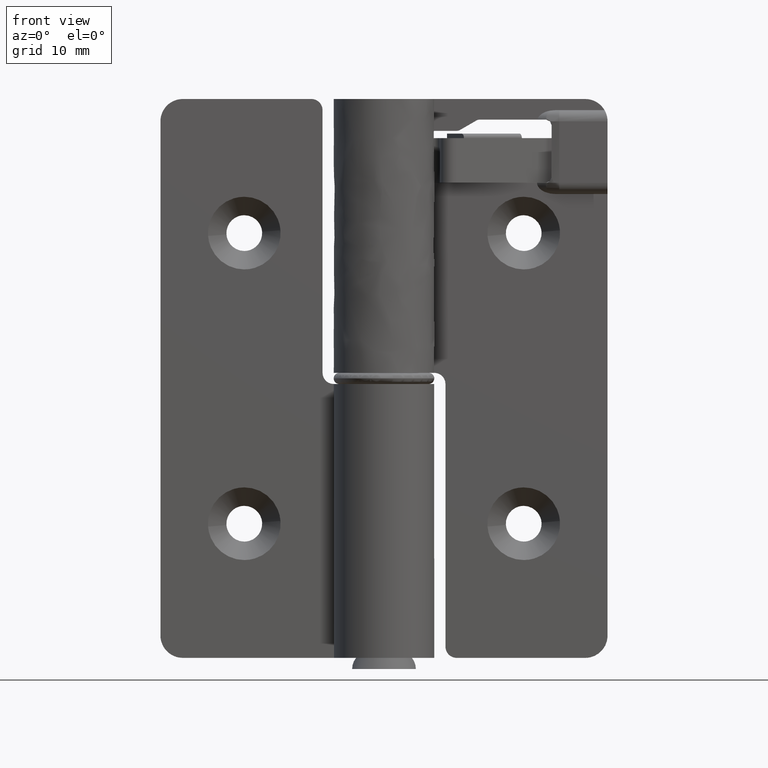
[diagram: clean part render]
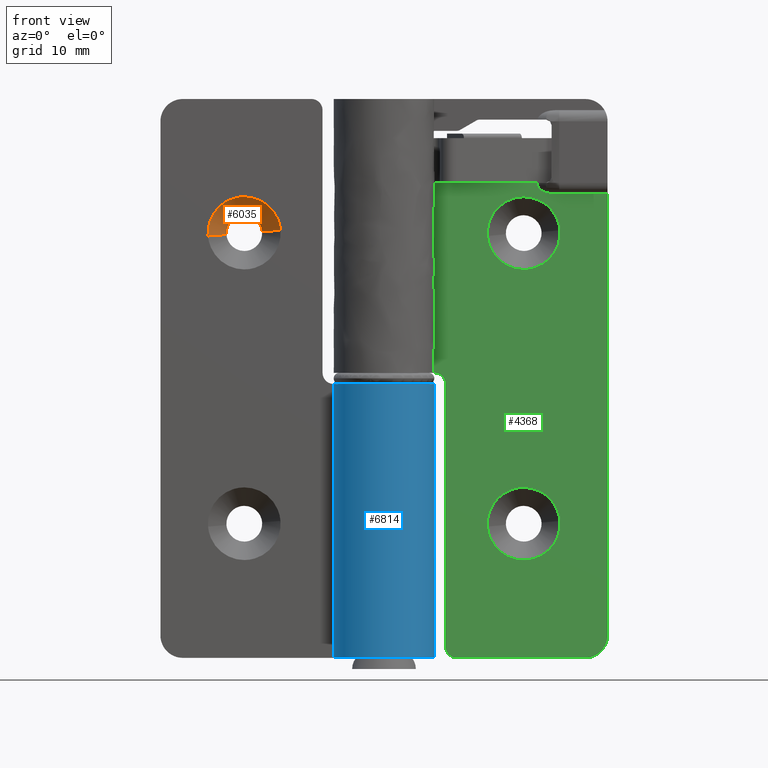
[diagram: same view with three faces highlighted in distinct colors, each labeled with its STEP entity id]
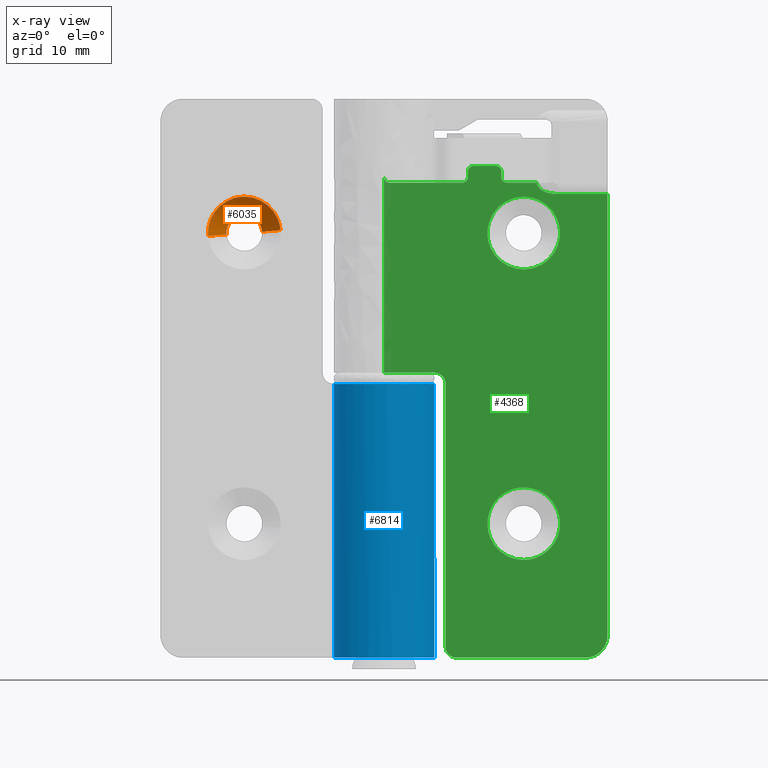
[diagram: x-ray of the same camera — body ghosted, the three highlighted faces saturated]
A machine part, front view with three faces highlighted in distinct colors.
The next image is the same camera in x-ray (body ghosted, the three faces saturated) — at least one of them is partly hidden behind the body in this view.
Their STEP definitions:

[orange] entity #6035 — the highlighted face is a freeform B-spline surface patch.
#5922=CARTESIAN_POINT('',(-10.946055106061390,4.191249999949160,38.122298115465078));
#5923=CARTESIAN_POINT('',(-11.068353221526461,4.191249999949159,39.676243009412651));
#5924=CARTESIAN_POINT('',(-12.622298115474040,4.191249999949160,39.553944893947573));
#5925=CARTESIAN_POINT('',(-14.176243009421610,4.191249999949159,39.431646778482502));
#5926=CARTESIAN_POINT('',(-14.053944893956540,4.191249999949160,37.877701884534922));
#5927=CARTESIAN_POINT('',(-9.217867754368330,2.457718749949155,38.258309409756038));
#5928=CARTESIAN_POINT('',(-9.476177164124367,2.457718749949155,41.540441655396670));
#5929=CARTESIAN_POINT('',(-12.758309409764999,2.457718749949155,41.282132245640632));
#5930=CARTESIAN_POINT('',(-16.040441655405630,2.457718749949155,41.023822835884594));
#5931=CARTESIAN_POINT('',(-15.782132245649590,2.457718749949155,37.741690590243962));
#5939=(BOUNDED_SURFACE()B_SPLINE_SURFACE(2,1,((#5922,#5927),(#5923,#5928),(#5924,#5929),(#5925,#5930),(#5926,#5931)),.UNSPECIFIED.,.F.,.F.,.U.)B_SPLINE_SURFACE_WITH_KNOTS((3,2,3),(2,2),(0.0,5.454830179571735,10.909660359143469),(0.0,2.451583404547591),.UNSPECIFIED.)GEOMETRIC_REPRESENTATION_ITEM()RATIONAL_B_SPLINE_SURFACE(((1.0,1.0),(0.707106781186548,0.707106781186548),(1.0,1.0),(0.707106781186548,0.707106781186548),(1.0,1.0)))REPRESENTATION_ITEM('')SURFACE());
#5940=CARTESIAN_POINT('',(-12.500000000008960,4.149999999949160,39.599999999991027));
#5941=VERTEX_POINT('',#5940);
#5942=CARTESIAN_POINT('',(-10.904932266030951,4.149999999914546,38.125534553427869));
#5943=VERTEX_POINT('',#5942);
#5944=CARTESIAN_POINT('',(-12.500000000008960,4.149999999949160,39.599999999991027));
#5945=CARTESIAN_POINT('',(-11.020975213589910,4.149999999931854,39.599999999992392));
#5946=CARTESIAN_POINT('',(-10.904932266030956,4.149999999914546,38.125534553427876));
#5954=(BOUNDED_CURVE()B_SPLINE_CURVE(2,(#5944,#5945,#5946),.UNSPECIFIED.,.F.,.U.)B_SPLINE_CURVE_WITH_KNOTS((3,3),(0.0,0.236331300604684),.UNSPECIFIED.)CURVE()GEOMETRIC_REPRESENTATION_ITEM()RATIONAL_B_SPLINE_CURVE((1.0,0.723120658638098,0.969723356113209))REPRESENTATION_ITEM(''));
#5955=EDGE_CURVE('',#5941,#5943,#5954,.T.);
#5956=ORIENTED_EDGE('',*,*,#5955,.T.);
#5957=CARTESIAN_POINT('',(-9.260018665377769,2.499999999930231,38.254992061261149));
#5958=VERTEX_POINT('',#5957);
#5959=CARTESIAN_POINT('',(-10.904932266030951,4.149999999914546,38.125534553427869));
#5960=CARTESIAN_POINT('',(-9.260018665377769,2.499999999930231,38.254992061261149));
#5961=QUASI_UNIFORM_CURVE('',1,(#5959,#5960),.UNSPECIFIED.,.F.,.U.);
#5962=EDGE_CURVE('',#5943,#5958,#5961,.T.);
#5963=ORIENTED_EDGE('',*,*,#5962,.T.);
#5964=CARTESIAN_POINT('',(-12.500000000008960,2.499999999949155,41.249999999991040));
#5965=VERTEX_POINT('',#5964);
#5966=CARTESIAN_POINT('',(-12.500000000008960,2.499999999949155,41.249999999991040));
#5967=CARTESIAN_POINT('',(-9.495730902253389,2.499999999939693,41.249999999991793));
#5968=CARTESIAN_POINT('',(-9.260018665377769,2.499999999930231,38.254992061261156));
#5976=(BOUNDED_CURVE()B_SPLINE_CURVE(2,(#5966,#5967,#5968),.UNSPECIFIED.,.F.,.U.)B_SPLINE_CURVE_WITH_KNOTS((3,3),(0.0,0.236331300625102),.UNSPECIFIED.)CURVE()GEOMETRIC_REPRESENTATION_ITEM()RATIONAL_B_SPLINE_CURVE((1.0,0.723120658614177,0.969723356155819))REPRESENTATION_ITEM(''));
#5977=EDGE_CURVE('',#5965,#5958,#5976,.T.);
#5978=ORIENTED_EDGE('',*,*,#5977,.F.);
#5979=CARTESIAN_POINT('',(-15.739981334640150,2.499999999930231,37.745007938738851));
#5980=VERTEX_POINT('',#5979);
#5981=CARTESIAN_POINT('',(-15.739981334640154,2.499999999930231,37.745007938738851));
#5982=CARTESIAN_POINT('',(-15.750000000018519,2.499999999930575,37.872307152151201));
#5983=CARTESIAN_POINT('',(-15.750000000018151,2.499999999930946,37.999999999998579));
#5984=CARTESIAN_POINT('',(-15.750000000008720,2.499999999940409,41.249999999990358));
#5985=CARTESIAN_POINT('',(-12.500000000008960,2.499999999949155,41.249999999991040));
#5993=(BOUNDED_CURVE()B_SPLINE_CURVE(2,(#5981,#5982,#5983,#5984,#5985),.UNSPECIFIED.,.F.,.U.)B_SPLINE_CURVE_WITH_KNOTS((3,2,3),(0.736331300625102,0.750000000000000,1.0),.UNSPECIFIED.)CURVE()GEOMETRIC_REPRESENTATION_ITEM()RATIONAL_B_SPLINE_CURVE((0.969723356155819,0.983986122572371,1.0,0.707106781186548,1.0))REPRESENTATION_ITEM(''));
#5994=EDGE_CURVE('',#5980,#5965,#5993,.T.);
#5995=ORIENTED_EDGE('',*,*,#5994,.F.);
#5996=CARTESIAN_POINT('',(-14.095067733986969,4.149999999914545,37.874465446572138));
#5997=VERTEX_POINT('',#5996);
#5998=CARTESIAN_POINT('',(-14.095067733986969,4.149999999914545,37.874465446572138));
#5999=CARTESIAN_POINT('',(-15.739981334640150,2.499999999930231,37.745007938738851));
#6000=QUASI_UNIFORM_CURVE('',1,(#5998,#5999),.UNSPECIFIED.,.F.,.U.);
#6001=EDGE_CURVE('',#5997,#5980,#6000,.T.);
#6002=ORIENTED_EDGE('',*,*,#6001,.F.);
#6003=CARTESIAN_POINT('',(-14.097015677470059,4.149999999949161,37.902322336664092));
#6004=VERTEX_POINT('',#6003);
#6005=CARTESIAN_POINT('',(-14.095067733986973,4.149999999914545,37.874465446572145));
#6006=CARTESIAN_POINT('',(-14.096163257427746,4.149999999931853,37.888385391895291));
#6007=CARTESIAN_POINT('',(-14.097015677470059,4.149999999949161,37.902322336664085));
#6015=(BOUNDED_CURVE()B_SPLINE_CURVE(2,(#6005,#6006,#6007),.UNSPECIFIED.,.F.,.U.)B_SPLINE_CURVE_WITH_KNOTS((3,3),(0.736331300604685,0.739332962233249),.UNSPECIFIED.)CURVE()GEOMETRIC_REPRESENTATION_ITEM()RATIONAL_B_SPLINE_CURVE((0.969723356113210,0.972855475526160,0.976072041654515))REPRESENTATION_ITEM(''));
#6016=EDGE_CURVE('',#5997,#6004,#6015,.T.);
#6017=ORIENTED_EDGE('',*,*,#6016,.T.);
#6018=CARTESIAN_POINT('',(-14.097015677470063,4.149999999949160,37.902322336664085));
#6019=CARTESIAN_POINT('',(-14.099999999999996,4.149999999949160,37.951115578682071));
#6020=CARTESIAN_POINT('',(-14.100000000000000,4.149999999949160,38.0));
#6021=CARTESIAN_POINT('',(-14.099999999999996,4.149999999949160,39.599999999991041));
#6022=CARTESIAN_POINT('',(-12.500000000008960,4.149999999949160,39.599999999991027));
#6030=(BOUNDED_CURVE()B_SPLINE_CURVE(2,(#6018,#6019,#6020,#6021,#6022),.UNSPECIFIED.,.F.,.U.)B_SPLINE_CURVE_WITH_KNOTS((3,2,3),(0.739332962233251,0.750000000000000,1.0),.UNSPECIFIED.)CURVE()GEOMETRIC_REPRESENTATION_ITEM()RATIONAL_B_SPLINE_CURVE((0.976072041654518,0.987502787893168,1.0,0.707106781186548,1.0))REPRESENTATION_ITEM(''));
#6031=EDGE_CURVE('',#6004,#5941,#6030,.T.);
#6032=ORIENTED_EDGE('',*,*,#6031,.T.);
#6033=EDGE_LOOP('',(#5956,#5963,#5978,#5995,#6002,#6017,#6032));
#6034=FACE_OUTER_BOUND('',#6033,.T.);
#6035=ADVANCED_FACE('',(#6034),#5939,.F.);

[blue] entity #6814 — the highlighted face is a freeform B-spline surface patch.
#6527=CARTESIAN_POINT('',(-2.361106E-011,4.499999999999915,24.500000000000000));
#6528=VERTEX_POINT('',#6527);
#6577=CARTESIAN_POINT('',(-4.031128874164946,1.999999999986880,24.500000000000000));
#6578=VERTEX_POINT('',#6577);
#6584=CARTESIAN_POINT('',(-4.031128874164946,1.999999999986880,24.500000000000000));
#6585=CARTESIAN_POINT('',(-4.138910698636552,1.782797901678130,24.500000000000039));
#6586=CARTESIAN_POINT('',(-4.319236697161159,1.330899886236733,24.499999999999869));
#6587=CARTESIAN_POINT('',(-4.470564290885482,0.648052508530876,24.500000000000291));
#6588=CARTESIAN_POINT('',(-4.512968782724442,0.011345466425118,24.499999999999499));
#6589=CARTESIAN_POINT('',(-4.471666774588810,-0.625003964052230,24.500000000000419));
#6590=CARTESIAN_POINT('',(-4.353332636852210,-1.190532115848609,24.500000000000050));
#6591=CARTESIAN_POINT('',(-4.147242810575023,-1.777563891560950,24.499999999999471));
#6592=CARTESIAN_POINT('',(-3.841242594775816,-2.389234467048076,24.500000000000782));
#6593=CARTESIAN_POINT('',(-3.322259551852740,-3.085314231481744,24.499999999999169));
#6594=CARTESIAN_POINT('',(-2.644624615598066,-3.677127305521129,24.500000000000380));
#6595=CARTESIAN_POINT('',(-1.998106877334217,-4.047997706311331,24.499999999999648));
#6596=CARTESIAN_POINT('',(-1.351045866301826,-4.309828777869096,24.500000000000291));
#6597=CARTESIAN_POINT('',(-0.552076751769771,-4.503752292403455,24.499999999998959));
#6598=CARTESIAN_POINT('',(0.425497224245524,-4.519134363299366,24.500000000000380));
#6599=CARTESIAN_POINT('',(1.319059296673167,-4.327074313559690,24.500000000000060));
#6600=CARTESIAN_POINT('',(2.064581517618691,-4.021992197182581,24.499999999999620));
#6601=CARTESIAN_POINT('',(2.775902178634438,-3.580916584550623,24.500000000000291));
#6602=CARTESIAN_POINT('',(3.418682263895889,-2.973413544661712,24.500000000000039));
#6603=CARTESIAN_POINT('',(3.855487689549861,-2.350389176699889,24.499999999999929));
#6604=CARTESIAN_POINT('',(4.164808762485109,-1.741601058334774,24.500000000000021));
#6605=CARTESIAN_POINT('',(4.398990779026056,-1.066120172799217,24.500000000000000));
#6606=CARTESIAN_POINT('',(4.523778500397806,-0.222262327367381,24.499999999999989));
#6607=CARTESIAN_POINT('',(4.483217019444445,0.583634507895880,24.500000000000011));
#6608=CARTESIAN_POINT('',(4.303377782666636,1.399665645807724,24.500000000000011));
#6609=CARTESIAN_POINT('',(3.959996375538783,2.214723043685090,24.500000000000011));
#6610=CARTESIAN_POINT('',(3.436418109586478,2.946369685308515,24.499999999999950));
#6611=CARTESIAN_POINT('',(2.777171842758245,3.576489097140029,24.500000000000281));
#6612=CARTESIAN_POINT('',(2.032560873465970,4.054673980552566,24.499999999999229));
#6613=CARTESIAN_POINT('',(1.060814606627533,4.413351782570992,24.500000000001592));
#6614=CARTESIAN_POINT('',(0.378883338405472,4.500098844575772,24.499999999998309));
#6615=CARTESIAN_POINT('',(-2.361106E-011,4.499999999999915,24.500000000000000));
#6616=B_SPLINE_CURVE_WITH_KNOTS('',3,(#6584,#6585,#6586,#6587,#6588,#6589,#6590,#6591,#6592,#6593,#6594,#6595,#6596,#6597,#6598,#6599,#6600,#6601,#6602,#6603,#6604,#6605,#6606,#6607,#6608,#6609,#6610,#6611,#6612,#6613,#6614,#6615),.UNSPECIFIED.,.F.,.U.,(4,1,1,1,1,1,1,1,1,1,1,1,1,1,1,1,1,1,1,1,1,1,1,1,1,1,1,1,1,4),(0.000000185316757,0.727421659344014,1.454895616428633,2.091413374669667,2.636997354512545,3.364450628588713,3.819108403073621,4.501089062986498,5.410399312130664,6.410630924166533,7.183532721016015,7.638193236881703,8.502050666034270,9.638689983581743,10.548020362724660,11.229986624437039,12.048360078525031,13.048584592408361,13.866973656365840,14.321633895197159,15.094557706961400,16.003869000038272,16.867709871503319,17.504201886918111,18.504441202661340,19.504693785518551,20.186686407979170,21.232405662262671,22.141705328260340,23.278342379566411),.UNSPECIFIED.);
#6617=EDGE_CURVE('',#6578,#6528,#6616,.T.);
#6635=CARTESIAN_POINT('',(-2.361106E-011,4.499999999999945,0.0));
#6636=VERTEX_POINT('',#6635);
#6642=CARTESIAN_POINT('',(-4.031128874165005,1.999999999986910,0.0));
#6643=VERTEX_POINT('',#6642);
#6644=CARTESIAN_POINT('',(-2.361106E-011,4.499999999999945,0.0));
#6645=CARTESIAN_POINT('',(0.378889206372981,4.500100369644279,0.0));
#6646=CARTESIAN_POINT('',(0.969879381552808,4.424896547282671,0.0));
#6647=CARTESIAN_POINT('',(1.762202467706558,4.159385631030336,0.0));
#6648=CARTESIAN_POINT('',(2.343663404375273,3.860459864176293,0.0));
#6649=CARTESIAN_POINT('',(2.899370034641605,3.462589628597901,0.0));
#6650=CARTESIAN_POINT('',(3.446318920250843,2.934557494791295,0.0));
#6651=CARTESIAN_POINT('',(3.948281859962594,2.225527748551656,0.0));
#6652=CARTESIAN_POINT('',(4.251063925955321,1.526685185996351,0.0));
#6653=CARTESIAN_POINT('',(4.443899500435284,0.808767718039549,0.0));
#6654=CARTESIAN_POINT('',(4.519644396871664,0.158188491351620,0.0));
#6655=CARTESIAN_POINT('',(4.474688438618705,-0.645809195255190,0.0));
#6656=CARTESIAN_POINT('',(4.323473144717106,-1.314040611124905,0.0));
#6657=CARTESIAN_POINT('',(4.064930203417964,-1.962857741290479,0.0));
#6658=CARTESIAN_POINT('',(3.735237589425131,-2.544684330163849,0.0));
#6659=CARTESIAN_POINT('',(3.315846251365067,-3.066275036612475,0.0));
#6660=CARTESIAN_POINT('',(2.836846710763846,-3.509876006020748,0.0));
#6661=CARTESIAN_POINT('',(2.241549836885197,-3.931124364561467,0.0));
#6662=CARTESIAN_POINT('',(1.563605611857329,-4.245238028640666,0.0));
#6663=CARTESIAN_POINT('',(0.814450667526625,-4.442132145589286,0.0));
#6664=CARTESIAN_POINT('',(0.209976652978507,-4.509247545985285,0.0));
#6665=CARTESIAN_POINT('',(-0.427310586807042,-4.492778463940939,0.0));
#6666=CARTESIAN_POINT('',(-1.132857881438533,-4.381010577765641,0.0));
#6667=CARTESIAN_POINT('',(-1.995275528007069,-4.076953652223637,0.0));
#6668=CARTESIAN_POINT('',(-2.781112985206144,-3.577248470777932,0.0));
#6669=CARTESIAN_POINT('',(-3.371408421123392,-3.006555455404187,0.0));
#6670=CARTESIAN_POINT('',(-3.831658736167552,-2.402210526450074,0.0));
#6671=CARTESIAN_POINT('',(-4.196796575020264,-1.699285147344835,0.0));
#6672=CARTESIAN_POINT('',(-4.416532170752226,-0.954925367552257,0.0));
#6673=CARTESIAN_POINT('',(-4.513372346622099,-0.217036071367904,0.0));
#6674=CARTESIAN_POINT('',(-4.493542860364249,0.543606015917952,0.0));
#6675=CARTESIAN_POINT('',(-4.326135486931863,1.317406910905722,0.0));
#6676=CARTESIAN_POINT('',(-4.132166308414941,1.796370555496658,0.0));
#6677=CARTESIAN_POINT('',(-4.031128874165005,1.999999999986910,0.0));
#6678=B_SPLINE_CURVE_WITH_KNOTS('',3,(#6644,#6645,#6646,#6647,#6648,#6649,#6650,#6651,#6652,#6653,#6654,#6655,#6656,#6657,#6658,#6659,#6660,#6661,#6662,#6663,#6664,#6665,#6666,#6667,#6668,#6669,#6670,#6671,#6672,#6673,#6674,#6675,#6676,#6677),.UNSPECIFIED.,.F.,.U.,(4,1,1,1,1,1,1,1,1,1,1,1,1,1,1,1,1,1,1,1,1,1,1,1,1,1,1,1,1,1,1,4),(0.000000185308846,1.136636647003869,1.773154591337399,2.500599269602265,3.091658085086849,3.819108403067990,4.773901528824911,5.683217519710226,6.092351738480613,7.001668260884451,7.638193236877967,8.502050666030948,9.047641502459355,9.729633166324932,10.502543992248500,11.048130513305759,11.684616575854699,12.684855891326260,13.275928017643411,14.003371118112121,14.503498493367140,15.185483730949731,16.140262466539721,17.231439536867629,17.958850174135780,18.595394119201138,19.504693785518501,20.323083804720859,20.914143018314238,21.732531935043880,22.596385513979900,23.278342379566450),.UNSPECIFIED.);
#6679=EDGE_CURVE('',#6636,#6643,#6678,.T.);
#6754=CARTESIAN_POINT('',(-2.361106E-011,4.499999999999915,24.500000000000000));
#6755=CARTESIAN_POINT('',(-2.361106E-011,4.499999999999945,0.0));
#6756=QUASI_UNIFORM_CURVE('',1,(#6754,#6755),.UNSPECIFIED.,.F.,.U.);
#6757=EDGE_CURVE('',#6528,#6636,#6756,.T.);
#6782=CARTESIAN_POINT('',(-3.977393610364055,2.104837302099153,25.112500000000001));
#6783=CARTESIAN_POINT('',(-3.977393610364055,2.104837302099153,-0.627812499999997));
#6784=CARTESIAN_POINT('',(-6.500711303889961,-2.663335354816473,25.112500000000004));
#6785=CARTESIAN_POINT('',(-6.500711303889961,-2.663335354816473,-0.627812499999997));
#6786=CARTESIAN_POINT('',(-1.357255295102575,-4.290437980432831,25.112500000000001));
#6787=CARTESIAN_POINT('',(-1.357255295102575,-4.290437980432831,-0.627812499999997));
#6788=CARTESIAN_POINT('',(3.786200713684815,-5.917540606049187,25.112500000000004));
#6789=CARTESIAN_POINT('',(3.786200713684815,-5.917540606049187,-0.627812499999997));
#6790=CARTESIAN_POINT('',(4.464307823483193,-0.565646229638194,25.112500000000001));
#6791=CARTESIAN_POINT('',(4.464307823483193,-0.565646229638194,-0.627812499999997));
#6792=CARTESIAN_POINT('',(5.142414933281571,4.786248146772801,25.112500000000004));
#6793=CARTESIAN_POINT('',(5.142414933281571,4.786248146772801,-0.627812499999997));
#6794=CARTESIAN_POINT('',(-0.244311439588478,4.493363096889701,25.112500000000001));
#6795=CARTESIAN_POINT('',(-0.244311439588478,4.493363096889701,-0.627812499999997));
#6803=(BOUNDED_SURFACE()B_SPLINE_SURFACE(1,2,((#6782,#6784,#6786,#6788,#6790,#6792,#6794),(#6783,#6785,#6787,#6789,#6791,#6793,#6795)),.UNSPECIFIED.,.F.,.F.,.U.)B_SPLINE_SURFACE_WITH_KNOTS((2,2),(3,2,2,3),(0.0,25.740312500000002),(0.0,8.425432079301356,16.850864158602711,25.276296237904070),.UNSPECIFIED.)GEOMETRIC_REPRESENTATION_ITEM()RATIONAL_B_SPLINE_SURFACE(((1.0,0.640556560368615,1.0,0.640556560368615,1.0,0.640556560368615,1.0),(1.0,0.640556560368615,1.0,0.640556560368615,1.0,0.640556560368615,1.0)))REPRESENTATION_ITEM('')SURFACE());
#6804=ORIENTED_EDGE('',*,*,#6617,.F.);
#6805=CARTESIAN_POINT('',(-4.031128874164946,1.999999999986880,24.500000000000000));
#6806=CARTESIAN_POINT('',(-4.031128874165005,1.999999999986910,0.0));
#6807=QUASI_UNIFORM_CURVE('',1,(#6805,#6806),.UNSPECIFIED.,.F.,.U.);
#6808=EDGE_CURVE('',#6578,#6643,#6807,.T.);
#6809=ORIENTED_EDGE('',*,*,#6808,.T.);
#6810=ORIENTED_EDGE('',*,*,#6679,.F.);
#6811=ORIENTED_EDGE('',*,*,#6757,.F.);
#6812=EDGE_LOOP('',(#6804,#6809,#6810,#6811));
#6813=FACE_OUTER_BOUND('',#6812,.T.);
#6814=ADVANCED_FACE('',(#6813),#6803,.T.);

[green] entity #4368 — the highlighted face is a freeform B-spline surface patch.
#3084=CARTESIAN_POINT('',(15.739981334575321,2.499999999981076,12.254992061257481));
#3085=VERTEX_POINT('',#3084);
#3091=CARTESIAN_POINT('',(12.499999999990701,2.500000000000000,15.249999999944320));
#3092=VERTEX_POINT('',#3091);
#3093=CARTESIAN_POINT('',(12.499999999990701,2.500000000000000,15.249999999944320));
#3094=CARTESIAN_POINT('',(15.504269097703085,2.499999999990538,15.249999999945068));
#3095=CARTESIAN_POINT('',(15.739981334575322,2.499999999981076,12.254992061257479));
#3103=(BOUNDED_CURVE()B_SPLINE_CURVE(2,(#3093,#3094,#3095),.UNSPECIFIED.,.F.,.U.)B_SPLINE_CURVE_WITH_KNOTS((3,3),(0.0,0.236331300625102),.UNSPECIFIED.)CURVE()GEOMETRIC_REPRESENTATION_ITEM()RATIONAL_B_SPLINE_CURVE((1.0,0.723120658614177,0.969723356155820))REPRESENTATION_ITEM(''));
#3104=EDGE_CURVE('',#3092,#3085,#3103,.T.);
#3106=CARTESIAN_POINT('',(9.260018665406076,2.499999999981076,11.745007938742519));
#3107=VERTEX_POINT('',#3106);
#3108=CARTESIAN_POINT('',(9.260018665406076,2.499999999981076,11.745007938742518));
#3109=CARTESIAN_POINT('',(9.250000000027853,2.499999999981419,11.872307152153033));
#3110=CARTESIAN_POINT('',(9.250000000028225,2.499999999981791,11.999999999998570));
#3111=CARTESIAN_POINT('',(9.250000000037659,2.499999999991254,15.249999999943631));
#3112=CARTESIAN_POINT('',(12.499999999990701,2.500000000000000,15.249999999944320));
#3120=(BOUNDED_CURVE()B_SPLINE_CURVE(2,(#3108,#3109,#3110,#3111,#3112),.UNSPECIFIED.,.F.,.U.)B_SPLINE_CURVE_WITH_KNOTS((3,2,3),(0.736331300625102,0.750000000000000,1.0),.UNSPECIFIED.)CURVE()GEOMETRIC_REPRESENTATION_ITEM()RATIONAL_B_SPLINE_CURVE((0.969723356155820,0.983986122572371,1.0,0.707106781186547,1.0))REPRESENTATION_ITEM(''));
#3121=EDGE_CURVE('',#3107,#3092,#3120,.T.);
#3157=CARTESIAN_POINT('',(12.499999999990701,2.500000000000000,8.750000000055680));
#3158=VERTEX_POINT('',#3157);
#3159=CARTESIAN_POINT('',(12.499999999990701,2.500000000000000,8.750000000055680));
#3160=CARTESIAN_POINT('',(9.495730902278305,2.499999999990538,8.750000000054939));
#3161=CARTESIAN_POINT('',(9.260018665406076,2.499999999981076,11.745007938742518));
#3169=(BOUNDED_CURVE()B_SPLINE_CURVE(2,(#3159,#3160,#3161),.UNSPECIFIED.,.F.,.U.)B_SPLINE_CURVE_WITH_KNOTS((3,3),(0.500000000000000,0.736331300625102),.UNSPECIFIED.)CURVE()GEOMETRIC_REPRESENTATION_ITEM()RATIONAL_B_SPLINE_CURVE((1.0,0.723120658614177,0.969723356155820))REPRESENTATION_ITEM(''));
#3170=EDGE_CURVE('',#3158,#3107,#3169,.T.);
#3172=CARTESIAN_POINT('',(15.739981334575324,2.499999999981076,12.254992061257481));
#3173=CARTESIAN_POINT('',(15.749999999953545,2.499999999981419,12.127692847846966));
#3174=CARTESIAN_POINT('',(15.749999999953170,2.499999999981791,12.000000000001430));
#3175=CARTESIAN_POINT('',(15.749999999943739,2.499999999991254,8.750000000056366));
#3176=CARTESIAN_POINT('',(12.499999999990701,2.500000000000000,8.750000000055680));
#3184=(BOUNDED_CURVE()B_SPLINE_CURVE(2,(#3172,#3173,#3174,#3175,#3176),.UNSPECIFIED.,.F.,.U.)B_SPLINE_CURVE_WITH_KNOTS((3,2,3),(0.236331300625102,0.250000000000000,0.500000000000000),.UNSPECIFIED.)CURVE()GEOMETRIC_REPRESENTATION_ITEM()RATIONAL_B_SPLINE_CURVE((0.969723356155820,0.983986122572371,1.0,0.707106781186547,1.0))REPRESENTATION_ITEM(''));
#3185=EDGE_CURVE('',#3085,#3158,#3184,.T.);
#3396=CARTESIAN_POINT('',(15.739981334575321,2.499999999981076,38.254992061257482));
#3397=VERTEX_POINT('',#3396);
#3403=CARTESIAN_POINT('',(12.499999999990701,2.500000000000000,41.249999999944322));
#3404=VERTEX_POINT('',#3403);
#3405=CARTESIAN_POINT('',(12.499999999990701,2.500000000000000,41.249999999944322));
#3406=CARTESIAN_POINT('',(15.504269097703084,2.499999999990538,41.249999999945054));
#3407=CARTESIAN_POINT('',(15.739981334575326,2.499999999981076,38.254992061257475));
#3415=(BOUNDED_CURVE()B_SPLINE_CURVE(2,(#3405,#3406,#3407),.UNSPECIFIED.,.F.,.U.)B_SPLINE_CURVE_WITH_KNOTS((3,3),(0.0,0.236331300625102),.UNSPECIFIED.)CURVE()GEOMETRIC_REPRESENTATION_ITEM()RATIONAL_B_SPLINE_CURVE((1.0,0.723120658614177,0.969723356155820))REPRESENTATION_ITEM(''));
#3416=EDGE_CURVE('',#3404,#3397,#3415,.T.);
#3418=CARTESIAN_POINT('',(9.260018665406076,2.499999999981076,37.745007938742518));
#3419=VERTEX_POINT('',#3418);
#3420=CARTESIAN_POINT('',(9.260018665406076,2.499999999981076,37.745007938742518));
#3421=CARTESIAN_POINT('',(9.250000000027855,2.499999999981419,37.872307152153027));
#3422=CARTESIAN_POINT('',(9.250000000028226,2.499999999981791,37.999999999998572));
#3423=CARTESIAN_POINT('',(9.250000000037661,2.499999999991254,41.249999999943626));
#3424=CARTESIAN_POINT('',(12.499999999990701,2.500000000000000,41.249999999944322));
#3432=(BOUNDED_CURVE()B_SPLINE_CURVE(2,(#3420,#3421,#3422,#3423,#3424),.UNSPECIFIED.,.F.,.U.)B_SPLINE_CURVE_WITH_KNOTS((3,2,3),(0.736331300625102,0.750000000000000,1.0),.UNSPECIFIED.)CURVE()GEOMETRIC_REPRESENTATION_ITEM()RATIONAL_B_SPLINE_CURVE((0.969723356155819,0.983986122572371,1.0,0.707106781186547,1.0))REPRESENTATION_ITEM(''));
#3433=EDGE_CURVE('',#3419,#3404,#3432,.T.);
#3469=CARTESIAN_POINT('',(12.499999999990701,2.500000000000000,34.750000000055678));
#3470=VERTEX_POINT('',#3469);
#3471=CARTESIAN_POINT('',(12.499999999990701,2.500000000000000,34.750000000055678));
#3472=CARTESIAN_POINT('',(9.495730902278311,2.499999999990538,34.750000000054939));
#3473=CARTESIAN_POINT('',(9.260018665406076,2.499999999981076,37.745007938742518));
#3481=(BOUNDED_CURVE()B_SPLINE_CURVE(2,(#3471,#3472,#3473),.UNSPECIFIED.,.F.,.U.)B_SPLINE_CURVE_WITH_KNOTS((3,3),(0.500000000000000,0.736331300625102),.UNSPECIFIED.)CURVE()GEOMETRIC_REPRESENTATION_ITEM()RATIONAL_B_SPLINE_CURVE((1.0,0.723120658614177,0.969723356155819))REPRESENTATION_ITEM(''));
#3482=EDGE_CURVE('',#3470,#3419,#3481,.T.);
#3484=CARTESIAN_POINT('',(15.739981334575324,2.499999999981075,38.254992061257475));
#3485=CARTESIAN_POINT('',(15.749999999953548,2.499999999981419,38.127692847846959));
#3486=CARTESIAN_POINT('',(15.749999999953170,2.499999999981792,38.000000000001428));
#3487=CARTESIAN_POINT('',(15.749999999943739,2.499999999991254,34.750000000056367));
#3488=CARTESIAN_POINT('',(12.499999999990701,2.500000000000000,34.750000000055678));
#3496=(BOUNDED_CURVE()B_SPLINE_CURVE(2,(#3484,#3485,#3486,#3487,#3488),.UNSPECIFIED.,.F.,.U.)B_SPLINE_CURVE_WITH_KNOTS((3,2,3),(0.236331300625102,0.250000000000000,0.500000000000000),.UNSPECIFIED.)CURVE()GEOMETRIC_REPRESENTATION_ITEM()RATIONAL_B_SPLINE_CURVE((0.969723356155820,0.983986122572371,1.0,0.707106781186547,1.0))REPRESENTATION_ITEM(''));
#3497=EDGE_CURVE('',#3397,#3470,#3496,.T.);
#3517=CARTESIAN_POINT('',(17.999999999990600,2.499999999941885,0.0));
#3518=VERTEX_POINT('',#3517);
#3519=CARTESIAN_POINT('',(19.999999999990600,2.499999999935425,2.0));
#3520=VERTEX_POINT('',#3519);
#3521=CARTESIAN_POINT('',(17.999999999990600,2.499999999941885,0.0));
#3522=CARTESIAN_POINT('',(19.999999999990607,2.499999999935424,0.0));
#3523=CARTESIAN_POINT('',(19.999999999990600,2.499999999935425,2.0));
#3531=(BOUNDED_CURVE()B_SPLINE_CURVE(2,(#3521,#3522,#3523),.UNSPECIFIED.,.F.,.U.)CURVE()GEOMETRIC_REPRESENTATION_ITEM()QUASI_UNIFORM_CURVE()RATIONAL_B_SPLINE_CURVE((1.0,0.707106781186548,1.0))REPRESENTATION_ITEM(''));
#3532=EDGE_CURVE('',#3518,#3520,#3531,.T.);
#3578=CARTESIAN_POINT('',(14.912656778415201,2.499999999951860,41.533927907394506));
#3579=VERTEX_POINT('',#3578);
#3580=CARTESIAN_POINT('',(13.690598923119859,2.499999999999945,42.500000000000000));
#3581=VERTEX_POINT('',#3580);
#3582=CARTESIAN_POINT('',(14.912656778415201,2.499999999951859,41.533927907394506));
#3583=CARTESIAN_POINT('',(13.690598923177719,2.499999999955807,41.732223503626379));
#3584=CARTESIAN_POINT('',(13.690598923177721,2.499999999955807,42.500000000000000));
#3592=(BOUNDED_CURVE()B_SPLINE_CURVE(2,(#3582,#3583,#3584),.UNSPECIFIED.,.F.,.U.)CURVE()GEOMETRIC_REPRESENTATION_ITEM()QUASI_UNIFORM_CURVE()RATIONAL_B_SPLINE_CURVE((1.0,0.793181112197908,1.0))REPRESENTATION_ITEM(''));
#3593=EDGE_CURVE('',#3579,#3581,#3592,.T.);
#3632=CARTESIAN_POINT('',(0.500000000000114,2.499999999999945,42.499999999998550));
#3633=VERTEX_POINT('',#3632);
#3639=CARTESIAN_POINT('',(7.000000000071401,2.499999999999945,42.499999999999098));
#3640=VERTEX_POINT('',#3639);
#3641=CARTESIAN_POINT('',(7.000000000071401,2.499999999999945,42.499999999999098));
#3642=CARTESIAN_POINT('',(0.500000000000114,2.499999999999945,42.499999999998550));
#3643=QUASI_UNIFORM_CURVE('',1,(#3641,#3642),.UNSPECIFIED.,.F.,.U.);
#3644=EDGE_CURVE('',#3640,#3633,#3643,.T.);
#3684=CARTESIAN_POINT('',(7.500000000071450,2.499999999999945,42.999999999999112));
#3685=VERTEX_POINT('',#3684);
#3686=CARTESIAN_POINT('',(7.000000000071401,2.499999999999945,42.499999999999098));
#3687=CARTESIAN_POINT('',(7.500000000071402,2.499999999999945,42.499999999999105));
#3688=CARTESIAN_POINT('',(7.500000000071401,2.499999999999945,42.999999999999112));
#3696=(BOUNDED_CURVE()B_SPLINE_CURVE(2,(#3686,#3687,#3688),.UNSPECIFIED.,.F.,.U.)CURVE()GEOMETRIC_REPRESENTATION_ITEM()QUASI_UNIFORM_CURVE()RATIONAL_B_SPLINE_CURVE((1.0,0.707106781186548,1.0))REPRESENTATION_ITEM(''));
#3697=EDGE_CURVE('',#3640,#3685,#3696,.T.);
#3720=CARTESIAN_POINT('',(7.500000000071450,2.499999999999945,43.500000000000000));
#3721=VERTEX_POINT('',#3720);
#3722=CARTESIAN_POINT('',(7.500000000071450,2.499999999999945,43.500000000000000));
#3723=CARTESIAN_POINT('',(7.500000000071450,2.499999999999945,42.999999999999112));
#3724=QUASI_UNIFORM_CURVE('',1,(#3722,#3723),.UNSPECIFIED.,.F.,.U.);
#3725=EDGE_CURVE('',#3721,#3685,#3724,.T.);
#3765=CARTESIAN_POINT('',(8.000000000071450,2.499999999999945,44.0));
#3766=VERTEX_POINT('',#3765);
#3767=CARTESIAN_POINT('',(8.000000000071450,2.499999999999945,44.0));
#3768=CARTESIAN_POINT('',(7.500000000071449,2.499999999999945,43.999999999999993));
#3769=CARTESIAN_POINT('',(7.500000000071450,2.499999999999945,43.500000000000000));
#3777=(BOUNDED_CURVE()B_SPLINE_CURVE(2,(#3767,#3768,#3769),.UNSPECIFIED.,.F.,.U.)CURVE()GEOMETRIC_REPRESENTATION_ITEM()QUASI_UNIFORM_CURVE()RATIONAL_B_SPLINE_CURVE((1.0,0.707106781186548,1.0))REPRESENTATION_ITEM(''));
#3778=EDGE_CURVE('',#3766,#3721,#3777,.T.);
#3801=CARTESIAN_POINT('',(9.999999999851578,2.499999999999945,44.0));
#3802=VERTEX_POINT('',#3801);
#3803=CARTESIAN_POINT('',(9.999999999851578,2.499999999999945,44.0));
#3804=CARTESIAN_POINT('',(8.000000000071450,2.499999999999945,44.0));
#3805=QUASI_UNIFORM_CURVE('',1,(#3803,#3804),.UNSPECIFIED.,.F.,.U.);
#3806=EDGE_CURVE('',#3802,#3766,#3805,.T.);
#3846=CARTESIAN_POINT('',(10.499999999851580,2.499999999999945,43.500000000000000));
#3847=VERTEX_POINT('',#3846);
#3848=CARTESIAN_POINT('',(10.499999999851580,2.499999999999945,43.500000000000000));
#3849=CARTESIAN_POINT('',(10.499999999851582,2.499999999999945,43.999999999999993));
#3850=CARTESIAN_POINT('',(9.999999999851578,2.499999999999945,44.0));
#3858=(BOUNDED_CURVE()B_SPLINE_CURVE(2,(#3848,#3849,#3850),.UNSPECIFIED.,.F.,.U.)CURVE()GEOMETRIC_REPRESENTATION_ITEM()QUASI_UNIFORM_CURVE()RATIONAL_B_SPLINE_CURVE((1.0,0.707106781186548,1.0))REPRESENTATION_ITEM(''));
#3859=EDGE_CURVE('',#3847,#3802,#3858,.T.);
#3882=CARTESIAN_POINT('',(10.499999999851459,2.499999999999945,43.0));
#3883=VERTEX_POINT('',#3882);
#3884=CARTESIAN_POINT('',(10.499999999851459,2.499999999999945,43.0));
#3885=CARTESIAN_POINT('',(10.499999999851580,2.499999999999945,43.500000000000000));
#3886=QUASI_UNIFORM_CURVE('',1,(#3884,#3885),.UNSPECIFIED.,.F.,.U.);
#3887=EDGE_CURVE('',#3883,#3847,#3886,.T.);
#3925=CARTESIAN_POINT('',(10.999999999851520,2.499999999999945,42.500000000000000));
#3926=VERTEX_POINT('',#3925);
#3927=CARTESIAN_POINT('',(10.499999999851459,2.499999999999945,43.0));
#3928=CARTESIAN_POINT('',(10.499977486892890,2.499999999999945,42.950910836141702));
#3929=CARTESIAN_POINT('',(10.513969236691279,2.499999999999947,42.856836106642817));
#3930=CARTESIAN_POINT('',(10.567256262973549,2.499999999999947,42.740485631682489));
#3931=CARTESIAN_POINT('',(10.640603378192489,2.499999999999941,42.646520492852723));
#3932=CARTESIAN_POINT('',(10.732986015482050,2.499999999999961,42.570685361160251));
#3933=CARTESIAN_POINT('',(10.856837177721911,2.499999999999924,42.513969121508289));
#3934=CARTESIAN_POINT('',(10.950910859909030,2.499999999999978,42.499977438585333));
#3935=CARTESIAN_POINT('',(10.999999999851520,2.499999999999945,42.500000000000000));
#3936=B_SPLINE_CURVE_WITH_KNOTS('',3,(#3927,#3928,#3929,#3930,#3931,#3932,#3933,#3934,#3935),.UNSPECIFIED.,.F.,.U.,(4,1,1,1,1,1,4),(0.000000123584844,0.147263352921721,0.282268418476787,0.380455198749917,0.503149577298402,0.638154642853700,0.785417872190484),.UNSPECIFIED.);
#3937=EDGE_CURVE('',#3883,#3926,#3936,.T.);
#3952=CARTESIAN_POINT('',(13.690598923119859,2.499999999999945,42.500000000000000));
#3953=CARTESIAN_POINT('',(10.999999999851520,2.499999999999945,42.500000000000000));
#3954=QUASI_UNIFORM_CURVE('',1,(#3952,#3953),.UNSPECIFIED.,.F.,.U.);
#3955=EDGE_CURVE('',#3581,#3926,#3954,.T.);
#4017=CARTESIAN_POINT('',(5.500000000000000,2.499999999982265,1.0));
#4018=VERTEX_POINT('',#4017);
#4019=CARTESIAN_POINT('',(6.500000000000000,2.499999999979035,0.0));
#4020=VERTEX_POINT('',#4019);
#4021=CARTESIAN_POINT('',(5.500000000000000,2.499999999982265,1.0));
#4022=CARTESIAN_POINT('',(5.500000000000001,2.499999999982266,0.0));
#4023=CARTESIAN_POINT('',(6.500000000000000,2.499999999979035,0.0));
#4031=(BOUNDED_CURVE()B_SPLINE_CURVE(2,(#4021,#4022,#4023),.UNSPECIFIED.,.F.,.U.)CURVE()GEOMETRIC_REPRESENTATION_ITEM()QUASI_UNIFORM_CURVE()RATIONAL_B_SPLINE_CURVE((1.0,0.707106781186548,1.0))REPRESENTATION_ITEM(''));
#4032=EDGE_CURVE('',#4018,#4020,#4031,.T.);
#4077=CARTESIAN_POINT('',(5.500000000000000,2.499999999982265,24.500000000000000));
#4078=VERTEX_POINT('',#4077);
#4079=CARTESIAN_POINT('',(5.500000000000000,2.499999999982265,24.500000000000000));
#4080=CARTESIAN_POINT('',(5.500000000000000,2.499999999982265,1.0));
#4081=QUASI_UNIFORM_CURVE('',1,(#4079,#4080),.UNSPECIFIED.,.F.,.U.);
#4082=EDGE_CURVE('',#4078,#4018,#4081,.T.);
#4103=CARTESIAN_POINT('',(6.500000000000000,2.499999999979035,0.0));
#4104=CARTESIAN_POINT('',(17.999999999990600,2.499999999941885,0.0));
#4105=QUASI_UNIFORM_CURVE('',1,(#4103,#4104),.UNSPECIFIED.,.F.,.U.);
#4106=EDGE_CURVE('',#4020,#3518,#4105,.T.);
#4270=CARTESIAN_POINT('',(-0.998999961236907,2.500000000003227,-2.197799914719465));
#4271=CARTESIAN_POINT('',(20.999000497668110,2.499999999932171,-2.197799914719465));
#4272=CARTESIAN_POINT('',(-0.998999961236907,2.500000000003227,46.197801094891432));
#4273=CARTESIAN_POINT('',(20.999000497668110,2.499999999932171,46.197801094891432));
#4274=B_SPLINE_SURFACE_WITH_KNOTS('',1,1,((#4270,#4272),(#4271,#4273)),.UNSPECIFIED.,.F.,.F.,.U.,(2,2),(2,2),(0.0,21.998000458905022),(0.0,48.395601009610900),.UNSPECIFIED.);
#4275=ORIENTED_EDGE('',*,*,#4106,.T.);
#4276=ORIENTED_EDGE('',*,*,#3532,.T.);
#4277=CARTESIAN_POINT('',(19.999999999990600,2.499999999935425,41.500000000000000));
#4278=VERTEX_POINT('',#4277);
#4279=CARTESIAN_POINT('',(19.999999999990600,2.499999999935425,2.0));
#4280=CARTESIAN_POINT('',(19.999999999990600,2.499999999935425,41.500000000000000));
#4281=QUASI_UNIFORM_CURVE('',1,(#4279,#4280),.UNSPECIFIED.,.F.,.U.);
#4282=EDGE_CURVE('',#3520,#4278,#4281,.T.);
#4283=ORIENTED_EDGE('',*,*,#4282,.T.);
#4284=CARTESIAN_POINT('',(15.676364719176901,2.500000000000000,41.500000000000000));
#4285=VERTEX_POINT('',#4284);
#4286=CARTESIAN_POINT('',(15.676364719176901,2.500000000000000,41.500000000000000));
#4287=CARTESIAN_POINT('',(19.999999999990600,2.499999999935425,41.500000000000000));
#4288=QUASI_UNIFORM_CURVE('',1,(#4286,#4287),.UNSPECIFIED.,.F.,.U.);
#4289=EDGE_CURVE('',#4285,#4278,#4288,.T.);
#4290=ORIENTED_EDGE('',*,*,#4289,.F.);
#4291=CARTESIAN_POINT('',(15.676364719176901,2.500000000000000,41.500000000000000));
#4292=CARTESIAN_POINT('',(15.612596786165341,2.500000000000207,41.500000000000007));
#4293=CARTESIAN_POINT('',(15.548826505490290,2.499999999949776,41.499947154735111));
#4294=CARTESIAN_POINT('',(15.421309942904919,2.499999999950187,41.500381669853340));
#4295=CARTESIAN_POINT('',(15.357564476261540,2.499999999950394,41.500887381672641));
#4296=CARTESIAN_POINT('',(15.166475498395680,2.499999999951012,41.505722947584736));
#4297=CARTESIAN_POINT('',(15.039279868927970,2.499999999951450,41.513381579638903));
#4298=CARTESIAN_POINT('',(14.912656778415201,2.499999999951860,41.533927907394457));
#4299=B_SPLINE_CURVE_WITH_KNOTS('',3,(#4291,#4292,#4293,#4294,#4295,#4296,#4297,#4298),.UNSPECIFIED.,.F.,.U.,(4,2,2,4),(0.0,0.250000000000000,0.500000000000000,1.0),.UNSPECIFIED.);
#4300=EDGE_CURVE('',#4285,#3579,#4299,.T.);
#4301=ORIENTED_EDGE('',*,*,#4300,.T.);
#4302=ORIENTED_EDGE('',*,*,#3593,.T.);
#4303=ORIENTED_EDGE('',*,*,#3955,.T.);
#4304=ORIENTED_EDGE('',*,*,#3937,.F.);
#4305=ORIENTED_EDGE('',*,*,#3887,.T.);
#4306=ORIENTED_EDGE('',*,*,#3859,.T.);
#4307=ORIENTED_EDGE('',*,*,#3806,.T.);
#4308=ORIENTED_EDGE('',*,*,#3778,.T.);
#4309=ORIENTED_EDGE('',*,*,#3725,.T.);
#4310=ORIENTED_EDGE('',*,*,#3697,.F.);
#4311=ORIENTED_EDGE('',*,*,#3644,.T.);
#4312=CARTESIAN_POINT('',(5.684342E-014,2.499999999999945,43.0));
#4313=VERTEX_POINT('',#4312);
#4314=CARTESIAN_POINT('',(5.684342E-014,2.499999999999945,43.0));
#4315=CARTESIAN_POINT('',(-0.000045814701537,2.499999999999952,42.938635440017322));
#4316=CARTESIAN_POINT('',(0.022864158118285,2.499999999999932,42.815943014564638));
#4317=CARTESIAN_POINT('',(0.112323142592634,2.499999999999950,42.670716707860173));
#4318=CARTESIAN_POINT('',(0.219765571506853,2.499999999999936,42.580394934603113));
#4319=CARTESIAN_POINT('',(0.344589304943065,2.499999999999951,42.517546579831560));
#4320=CARTESIAN_POINT('',(0.438631066910918,2.499999999999937,42.499947242924613));
#4321=CARTESIAN_POINT('',(0.500000000000114,2.499999999999945,42.499999999998550));
#4322=B_SPLINE_CURVE_WITH_KNOTS('',3,(#4314,#4315,#4316,#4317,#4318,#4319,#4320,#4321),.UNSPECIFIED.,.F.,.U.,(4,1,1,1,1,4),(0.000000123591148,0.184081763442904,0.368176507064077,0.503149577300968,0.601336232339138,0.785417872190407),.UNSPECIFIED.);
#4323=EDGE_CURVE('',#4313,#3633,#4322,.T.);
#4324=ORIENTED_EDGE('',*,*,#4323,.F.);
#4325=CARTESIAN_POINT('',(-1.196836E-012,2.500000000000000,25.500000000000000));
#4326=VERTEX_POINT('',#4325);
#4327=CARTESIAN_POINT('',(-1.196836E-012,2.500000000000000,25.500000000000000));
#4328=CARTESIAN_POINT('',(5.684342E-014,2.499999999999945,43.0));
#4329=QUASI_UNIFORM_CURVE('',1,(#4327,#4328),.UNSPECIFIED.,.F.,.U.);
#4330=EDGE_CURVE('',#4326,#4313,#4329,.T.);
#4331=ORIENTED_EDGE('',*,*,#4330,.F.);
#4332=CARTESIAN_POINT('',(4.500000000000000,2.499999999985495,25.500000000000000));
#4333=VERTEX_POINT('',#4332);
#4334=CARTESIAN_POINT('',(-1.196836E-012,2.500000000000000,25.500000000000000));
#4335=CARTESIAN_POINT('',(4.500000000000000,2.499999999985495,25.500000000000000));
#4336=QUASI_UNIFORM_CURVE('',1,(#4334,#4335),.UNSPECIFIED.,.F.,.U.);
#4337=EDGE_CURVE('',#4326,#4333,#4336,.T.);
#4338=ORIENTED_EDGE('',*,*,#4337,.T.);
#4339=CARTESIAN_POINT('',(4.500000000000000,2.499999999985515,25.500000000000000));
#4340=CARTESIAN_POINT('',(5.500000000000001,2.499999999982286,25.500000000000007));
#4341=CARTESIAN_POINT('',(5.500000000000000,2.499999999982285,24.500000000000000));
#4349=(BOUNDED_CURVE()B_SPLINE_CURVE(2,(#4339,#4340,#4341),.UNSPECIFIED.,.F.,.U.)CURVE()GEOMETRIC_REPRESENTATION_ITEM()QUASI_UNIFORM_CURVE()RATIONAL_B_SPLINE_CURVE((1.0,0.707106781186548,1.0))REPRESENTATION_ITEM(''));
#4350=EDGE_CURVE('',#4333,#4078,#4349,.T.);
#4351=ORIENTED_EDGE('',*,*,#4350,.T.);
#4352=ORIENTED_EDGE('',*,*,#4082,.T.);
#4353=ORIENTED_EDGE('',*,*,#4032,.T.);
#4354=EDGE_LOOP('',(#4275,#4276,#4283,#4290,#4301,#4302,#4303,#4304,#4305,#4306,#4307,#4308,#4309,#4310,#4311,#4324,#4331,#4338,#4351,#4352,#4353));
#4355=FACE_OUTER_BOUND('',#4354,.T.);
#4356=ORIENTED_EDGE('',*,*,#3482,.T.);
#4357=ORIENTED_EDGE('',*,*,#3433,.T.);
#4358=ORIENTED_EDGE('',*,*,#3416,.T.);
#4359=ORIENTED_EDGE('',*,*,#3497,.T.);
#4360=EDGE_LOOP('',(#4356,#4357,#4358,#4359));
#4361=FACE_BOUND('',#4360,.T.);
#4362=ORIENTED_EDGE('',*,*,#3170,.T.);
#4363=ORIENTED_EDGE('',*,*,#3121,.T.);
#4364=ORIENTED_EDGE('',*,*,#3104,.T.);
#4365=ORIENTED_EDGE('',*,*,#3185,.T.);
#4366=EDGE_LOOP('',(#4362,#4363,#4364,#4365));
#4367=FACE_BOUND('',#4366,.T.);
#4368=ADVANCED_FACE('',(#4355,#4361,#4367),#4274,.T.);